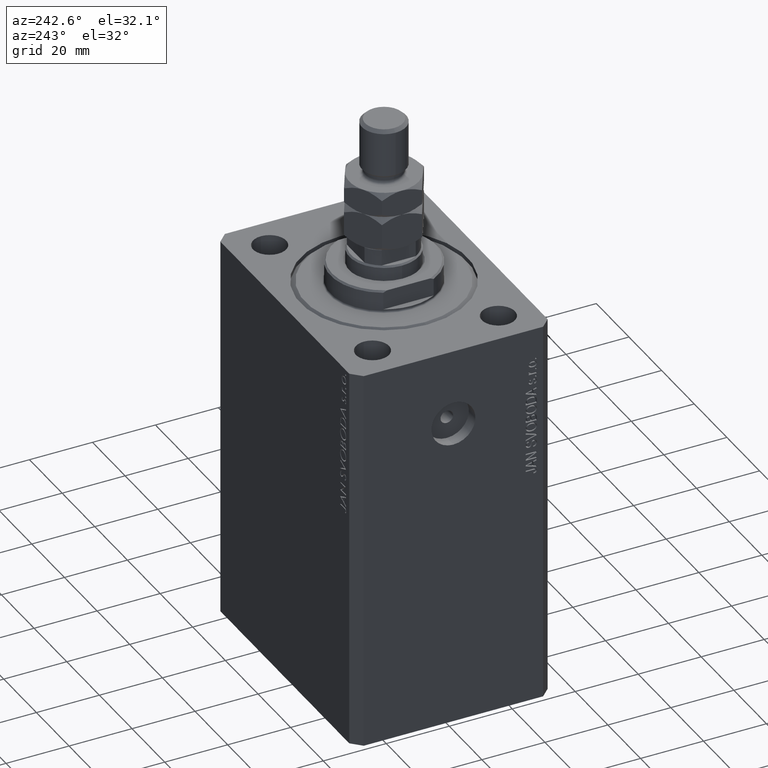
[diagram: clean part render]
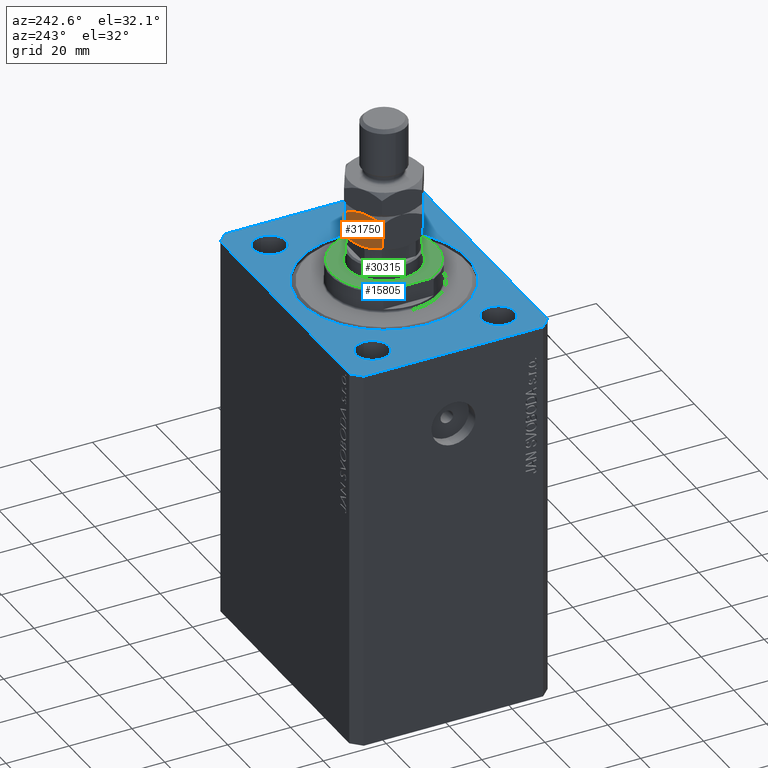
[diagram: same view with three faces highlighted in distinct colors, each labeled with its STEP entity id]
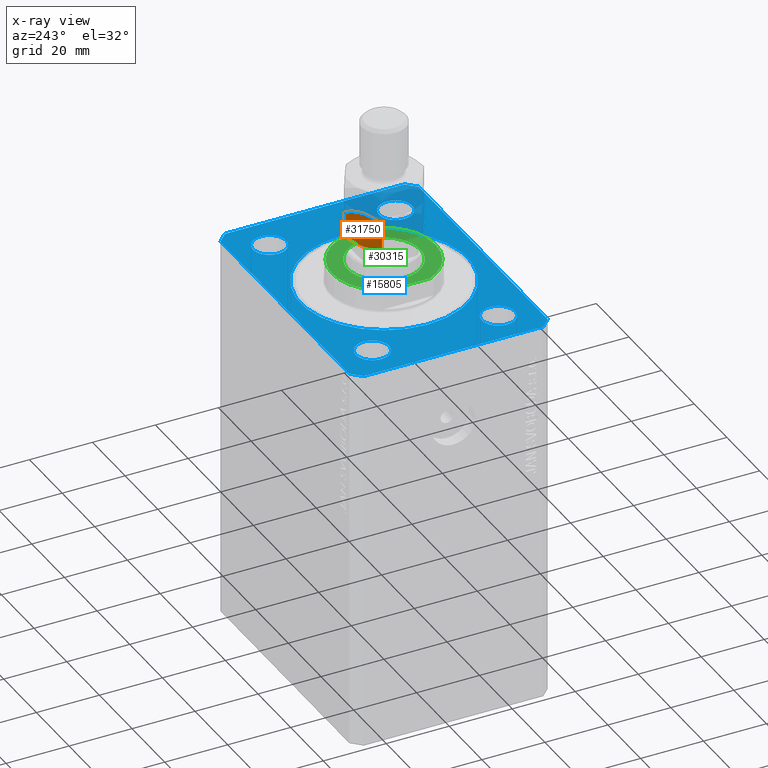
[diagram: x-ray of the same camera — body ghosted, the three highlighted faces saturated]
A machine part, auxiliary view with three faces highlighted in distinct colors.
The next image is the same camera in x-ray (body ghosted, the three faces saturated) — at least one of them is partly hidden behind the body in this view.
Their STEP definitions:

[orange] entity #31750 — the highlighted planar face has unit normal (0.5, -0.866, 0).
#35 = B_SPLINE_CURVE_WITH_KNOTS ( 'NONE', 3,
 ( #40409, #33423, #19397, #33647, #1659, #30131, #23133, #3673 ),
 .UNSPECIFIED., .F., .F.,
 ( 4, 2, 2, 4 ),
 ( 2.544311317609508508E-07, 0.003291871675740026034, 0.004937680298044156910, 0.006583488920348289086 ),
 .UNSPECIFIED. ) ;
#934 = CARTESIAN_POINT ( 'NONE',  ( -11.00000000000000000, 6.350852961085890591, 9.298294077828234805 ) ) ;
#1389 = CARTESIAN_POINT ( 'NONE',  ( 9.006588997586899406E-16, 12.70170592217176342, 1.701705922171758312 ) ) ;
#1659 = CARTESIAN_POINT ( 'NONE',  ( -3.579894028994817123, 10.63485314086127786, 10.79187792513292798 ) ) ;
#1712 = FACE_OUTER_BOUND ( 'NONE', #28970, .T. ) ;
#2554 = CARTESIAN_POINT ( 'NONE',  ( -7.397073880711845462, 8.431003325927239445, 10.83109139163524404 ) ) ;
#3673 = CARTESIAN_POINT ( 'NONE',  ( -5.499999999999990230, 9.526279441628824785, 11.00000000000000000 ) ) ;
#3925 = VERTEX_POINT ( 'NONE', #33505 ) ;
#6054 = CARTESIAN_POINT ( 'NONE',  ( -6.456670474420569406, 8.973945485696344093, 11.00000000000000000 ) ) ;
#6212 = LINE ( 'NONE', #42610, #34348 ) ;
#7448 = LINE ( 'NONE', #13763, #42145 ) ;
#7493 = EDGE_CURVE ( 'NONE', #8575, #3925, #6212, .T. ) ;
#7524 = CARTESIAN_POINT ( 'NONE',  ( -7.884967580346608607, 8.149317767107183030, 0.3282192120904074417 ) ) ;
#7699 = B_SPLINE_CURVE_WITH_KNOTS ( 'NONE', 3,
 ( #38041, #6054, #2554, #31053, #45285, #21208 ),
 .UNSPECIFIED., .F., .F.,
 ( 4, 2, 4 ),
 ( 0.006583488920348289086, 0.009852050593448704457, 0.01312061226654911983 ),
 .UNSPECIFIED. ) ;
#7920 = CARTESIAN_POINT ( 'NONE',  ( -4.543329525579419048, 10.07861339756131791, 1.768604793866978714E-15 ) ) ;
#8349 = EDGE_CURVE ( 'NONE', #25947, #3925, #33055, .T. ) ;
#8473 = B_SPLINE_CURVE_WITH_KNOTS ( 'NONE', 3,
 ( #43009, #39507, #32745, #7524, #40198, #15011, #21765, #22458 ),
 .UNSPECIFIED., .F., .F.,
 ( 4, 2, 2, 4 ),
 ( 2.544311317612473652E-07, 0.003291871675740032539, 0.004937680298044168185, 0.006583488920348303831 ),
 .UNSPECIFIED. ) ;
#8537 = AXIS2_PLACEMENT_3D ( 'NONE', #43282, #12213, #8734 ) ;
#8575 = VERTEX_POINT ( 'NONE', #19929 ) ;
#8734 = DIRECTION ( 'NONE',  ( 0.8660254037844389297, 0.4999999999999992784, 0.000000000000000000 ) ) ;
#11410 = CARTESIAN_POINT ( 'NONE',  ( -5.499999999999990230, 9.526279441628824785, 11.00000000000000000 ) ) ;
#12213 = DIRECTION ( 'NONE',  ( 0.4999999999999993339, -0.8660254037844390407, 0.000000000000000000 ) ) ;
#13763 = CARTESIAN_POINT ( 'NONE',  ( -11.00000000000000000, 6.350852961085890591, 11.00000000000000000 ) ) ;
#14384 = ORIENTED_EDGE ( 'NONE', *, *, #35974, .F. ) ;
#15011 = CARTESIAN_POINT ( 'NONE',  ( -6.470625887979888802, 8.965888323921223702, 0.04365929743512723255 ) ) ;
#15412 = CARTESIAN_POINT ( 'NONE',  ( -3.602926119288147433, 10.62155555733042434, 0.1689086083647601266 ) ) ;
#15520 = PLANE ( 'NONE',  #8537 ) ;
#15770 = VERTEX_POINT ( 'NONE', #934 ) ;
#15868 = ORIENTED_EDGE ( 'NONE', *, *, #7493, .T. ) ;
#16404 = EDGE_CURVE ( 'NONE', #24137, #25947, #8473, .T. ) ;
#18289 = CARTESIAN_POINT ( 'NONE',  ( -11.00000000000000000, 6.350852961085892368, 1.701705922171765195 ) ) ;
#19307 = CARTESIAN_POINT ( 'NONE',  ( -5.499999999999992895, 9.526279441628830114, 0.000000000000000000 ) ) ;
#19397 = CARTESIAN_POINT ( 'NONE',  ( -1.744478007639206130, 11.69453107486589083, 10.21937661245322637 ) ) ;
#19929 = CARTESIAN_POINT ( 'NONE',  ( -4.327962126576701651E-16, 12.70170592217176342, 9.298294077828241910 ) ) ;
#20502 = ORIENTED_EDGE ( 'NONE', *, *, #16404, .F. ) ;
#21208 = CARTESIAN_POINT ( 'NONE',  ( -11.00000000000000000, 6.350852961085890591, 9.298294077828234805 ) ) ;
#21765 = CARTESIAN_POINT ( 'NONE',  ( -5.981709287746635795, 9.248164454677164414, 1.734723475976807094E-15 ) ) ;
#22458 = CARTESIAN_POINT ( 'NONE',  ( -5.499999999999992895, 9.526279441628830114, 0.000000000000000000 ) ) ;
#23133 = CARTESIAN_POINT ( 'NONE',  ( -5.018290712253354435, 9.804394428580495813, 11.00000000000000178 ) ) ;
#24137 = VERTEX_POINT ( 'NONE', #18289 ) ;
#25947 = VERTEX_POINT ( 'NONE', #19307 ) ;
#27761 = ORIENTED_EDGE ( 'NONE', *, *, #8349, .F. ) ;
#28008 = DIRECTION ( 'NONE',  ( -0.000000000000000000, -0.000000000000000000, -1.000000000000000000 ) ) ;
#28970 = EDGE_LOOP ( 'NONE', ( #20502, #42463, #43246, #14384, #15868, #27761 ) ) ;
#29865 = CARTESIAN_POINT ( 'NONE',  ( -5.499999999999992895, 9.526279441628830114, 0.000000000000000000 ) ) ;
#30131 = CARTESIAN_POINT ( 'NONE',  ( -4.529374112020101428, 10.08667055933643830, 10.95634070256487469 ) ) ;
#30330 = EDGE_CURVE ( 'NONE', #41113, #15770, #7699, .T. ) ;
#31053 = CARTESIAN_POINT ( 'NONE',  ( -9.251785468064188223, 7.360185091700242488, 10.22231519547797340 ) ) ;
#31750 = ADVANCED_FACE ( 'NONE', ( #1712 ), #15520, .F. ) ;
#32745 = CARTESIAN_POINT ( 'NONE',  ( -9.255521992360788985, 7.358027808391769398, 0.7806233875467772920 ) ) ;
#33055 = B_SPLINE_CURVE_WITH_KNOTS ( 'NONE', 3,
 ( #29865, #7920, #15412, #33374, #40823, #1389 ),
 .UNSPECIFIED., .F., .F.,
 ( 4, 2, 4 ),
 ( 0.006583488920348303831, 0.009852050593448711396, 0.01312061226654911809 ),
 .UNSPECIFIED. ) ;
#33374 = CARTESIAN_POINT ( 'NONE',  ( -1.748214531935804672, 11.69237379155741330, 0.7776848045220272621 ) ) ;
#33423 = CARTESIAN_POINT ( 'NONE',  ( -0.8624791307172121613, 12.20375336388174681, 9.796246636118258522 ) ) ;
#33505 = CARTESIAN_POINT ( 'NONE',  ( 9.006588997586899406E-16, 12.70170592217176342, 1.701705922171758312 ) ) ;
#33647 = CARTESIAN_POINT ( 'NONE',  ( -3.115032419653383400, 10.90324111615047542, 10.67178078790959539 ) ) ;
#33898 = EDGE_CURVE ( 'NONE', #15770, #24137, #7448, .T. ) ;
#34348 = VECTOR ( 'NONE', #45439, 1000.000000000000000 ) ;
#35974 = EDGE_CURVE ( 'NONE', #8575, #41113, #35, .T. ) ;
#38041 = CARTESIAN_POINT ( 'NONE',  ( -5.499999999999990230, 9.526279441628824785, 11.00000000000000000 ) ) ;
#39507 = CARTESIAN_POINT ( 'NONE',  ( -10.13752086928278118, 6.848805519375908979, 1.203753363881748362 ) ) ;
#40198 = CARTESIAN_POINT ( 'NONE',  ( -7.420105971005176215, 8.417705742396382362, 0.2081220748670755127 ) ) ;
#40409 = CARTESIAN_POINT ( 'NONE',  ( -4.327962126576701651E-16, 12.70170592217176342, 9.298294077828241910 ) ) ;
#40823 = CARTESIAN_POINT ( 'NONE',  ( -0.8614806024966418230, 12.20432986441868728, 1.204329864418604235 ) ) ;
#41113 = VERTEX_POINT ( 'NONE', #11410 ) ;
#42145 = VECTOR ( 'NONE', #28008, 1000.000000000000000 ) ;
#42463 = ORIENTED_EDGE ( 'NONE', *, *, #33898, .F. ) ;
#42610 = CARTESIAN_POINT ( 'NONE',  ( 0.000000000000000000, 12.70170592217176342, 11.00000000000000000 ) ) ;
#43009 = CARTESIAN_POINT ( 'NONE',  ( -11.00000000000000000, 6.350852961085892368, 1.701705922171765195 ) ) ;
#43246 = ORIENTED_EDGE ( 'NONE', *, *, #30330, .F. ) ;
#43282 = CARTESIAN_POINT ( 'NONE',  ( 0.000000000000000000, 12.70170592217176342, 11.00000000000000000 ) ) ;
#45285 = CARTESIAN_POINT ( 'NONE',  ( -10.13851939750335696, 6.848229018838968507, 9.795670135581390880 ) ) ;
#45439 = DIRECTION ( 'NONE',  ( -0.000000000000000000, -0.000000000000000000, -1.000000000000000000 ) ) ;

[blue] entity #15805 — the highlighted planar face has unit normal (0, 0, 1).
#361 = AXIS2_PLACEMENT_3D ( 'NONE', #27453, #27680, #41900 ) ;
#516 = VERTEX_POINT ( 'NONE', #37106 ) ;
#536 = CIRCLE ( 'NONE', #6488, 5.250000000000000888 ) ;
#813 = EDGE_CURVE ( 'NONE', #15552, #8520, #536, .T. ) ;
#907 = ORIENTED_EDGE ( 'NONE', *, *, #26752, .F. ) ;
#954 = DIRECTION ( 'NONE',  ( -1.000000000000000000, 0.000000000000000000, 0.000000000000000000 ) ) ;
#1036 = CARTESIAN_POINT ( 'NONE',  ( -26.24999999999999289, -20.00000000000000355, 0.000000000000000000 ) ) ;
#1311 = CARTESIAN_POINT ( 'NONE',  ( 31.49999999999999289, -20.00000000000000355, 0.000000000000000000 ) ) ;
#1376 = DIRECTION ( 'NONE',  ( 1.000000000000000000, 0.000000000000000000, 0.000000000000000000 ) ) ;
#1455 = CARTESIAN_POINT ( 'NONE',  ( 42.50000000000000711, -28.50000000000000355, 0.000000000000000000 ) ) ;
#1774 = VECTOR ( 'NONE', #954, 1000.000000000000000 ) ;
#2152 = DIRECTION ( 'NONE',  ( 1.000000000000000000, 0.000000000000000000, 0.000000000000000000 ) ) ;
#3245 = CARTESIAN_POINT ( 'NONE',  ( 31.50000000000000000, 19.99999999999999289, 0.000000000000000000 ) ) ;
#3789 = CARTESIAN_POINT ( 'NONE',  ( -36.74999999999999289, -20.00000000000000355, 0.000000000000000000 ) ) ;
#3797 = CARTESIAN_POINT ( 'NONE',  ( -26.25000000000000000, 19.99999999999999645, 0.000000000000000000 ) ) ;
#3993 = AXIS2_PLACEMENT_3D ( 'NONE', #44418, #8939, #2152 ) ;
#4134 = CARTESIAN_POINT ( 'NONE',  ( 31.49999999999999289, -20.00000000000000355, 0.000000000000000000 ) ) ;
#4263 = DIRECTION ( 'NONE',  ( 1.000000000000000000, 0.000000000000000000, 0.000000000000000000 ) ) ;
#4651 = VERTEX_POINT ( 'NONE', #6041 ) ;
#4745 = ORIENTED_EDGE ( 'NONE', *, *, #6493, .T. ) ;
#5235 = ORIENTED_EDGE ( 'NONE', *, *, #27146, .F. ) ;
#5686 = ORIENTED_EDGE ( 'NONE', *, *, #40856, .T. ) ;
#6041 = CARTESIAN_POINT ( 'NONE',  ( 26.50000000000000355, 0.000000000000000000, 0.000000000000000000 ) ) ;
#6383 = AXIS2_PLACEMENT_3D ( 'NONE', #24470, #6716, #13036 ) ;
#6439 = CARTESIAN_POINT ( 'NONE',  ( 36.75000000000000000, 19.99999999999999289, 0.000000000000000000 ) ) ;
#6488 = AXIS2_PLACEMENT_3D ( 'NONE', #46164, #17697, #25386 ) ;
#6493 = EDGE_CURVE ( 'NONE', #23498, #25272, #10236, .T. ) ;
#6716 = DIRECTION ( 'NONE',  ( 0.000000000000000000, 0.000000000000000000, 1.000000000000000000 ) ) ;
#6836 = LINE ( 'NONE', #43475, #25380 ) ;
#6970 = VERTEX_POINT ( 'NONE', #37221 ) ;
#7017 = AXIS2_PLACEMENT_3D ( 'NONE', #4134, #11368, #15587 ) ;
#7077 = EDGE_CURVE ( 'NONE', #7477, #16525, #6836, .T. ) ;
#7477 = VERTEX_POINT ( 'NONE', #17424 ) ;
#7497 = EDGE_CURVE ( 'NONE', #20958, #6970, #45662, .T. ) ;
#7952 = CARTESIAN_POINT ( 'NONE',  ( -39.50000000000000711, 31.50000000000000000, 0.000000000000000000 ) ) ;
#8102 = ORIENTED_EDGE ( 'NONE', *, *, #15684, .T. ) ;
#8286 = DIRECTION ( 'NONE',  ( 1.000000000000000000, 0.000000000000000000, 0.000000000000000000 ) ) ;
#8520 = VERTEX_POINT ( 'NONE', #1036 ) ;
#8573 = AXIS2_PLACEMENT_3D ( 'NONE', #36697, #25496, #4263 ) ;
#8939 = DIRECTION ( 'NONE',  ( 0.000000000000000000, 0.000000000000000000, 1.000000000000000000 ) ) ;
#9033 = VERTEX_POINT ( 'NONE', #42949 ) ;
#9110 = LINE ( 'NONE', #25930, #1774 ) ;
#9234 = CIRCLE ( 'NONE', #3993, 5.250000000000000888 ) ;
#9240 = CARTESIAN_POINT ( 'NONE',  ( -42.50000000000000000, 28.50000000000000000, 0.000000000000000000 ) ) ;
#9448 = VERTEX_POINT ( 'NONE', #6439 ) ;
#9598 = CARTESIAN_POINT ( 'NONE',  ( -42.50000000000000000, -28.50000000000000000, 0.000000000000000000 ) ) ;
#9957 = DIRECTION ( 'NONE',  ( 1.000000000000000000, 0.000000000000000000, 0.000000000000000000 ) ) ;
#10236 = LINE ( 'NONE', #16784, #20150 ) ;
#10327 = EDGE_CURVE ( 'NONE', #4651, #9033, #20251, .T. ) ;
#10764 = DIRECTION ( 'NONE',  ( 8.886653596232072440E-15, 1.000000000000000000, 0.000000000000000000 ) ) ;
#10934 = ORIENTED_EDGE ( 'NONE', *, *, #16365, .F. ) ;
#11368 = DIRECTION ( 'NONE',  ( 0.000000000000000000, 0.000000000000000000, 1.000000000000000000 ) ) ;
#11916 = ORIENTED_EDGE ( 'NONE', *, *, #7077, .T. ) ;
#12355 = FACE_BOUND ( 'NONE', #24645, .T. ) ;
#12525 = ORIENTED_EDGE ( 'NONE', *, *, #40245, .F. ) ;
#12869 = EDGE_LOOP ( 'NONE', ( #35659, #4745, #5686, #8102, #25806, #11916, #35766, #15498 ) ) ;
#13036 = DIRECTION ( 'NONE',  ( 1.000000000000000000, 0.000000000000000000, 0.000000000000000000 ) ) ;
#13222 = FACE_OUTER_BOUND ( 'NONE', #12869, .T. ) ;
#13280 = VERTEX_POINT ( 'NONE', #45684 ) ;
#13435 = EDGE_CURVE ( 'NONE', #43616, #7477, #39833, .T. ) ;
#13582 = ORIENTED_EDGE ( 'NONE', *, *, #813, .F. ) ;
#14087 = DIRECTION ( 'NONE',  ( 0.7071067811865483499, 0.7071067811865466846, 0.000000000000000000 ) ) ;
#14679 = EDGE_CURVE ( 'NONE', #15326, #44925, #45808, .T. ) ;
#15326 = VERTEX_POINT ( 'NONE', #16903 ) ;
#15498 = ORIENTED_EDGE ( 'NONE', *, *, #7497, .T. ) ;
#15552 = VERTEX_POINT ( 'NONE', #3789 ) ;
#15587 = DIRECTION ( 'NONE',  ( 1.000000000000000000, 0.000000000000000000, 0.000000000000000000 ) ) ;
#15609 = VERTEX_POINT ( 'NONE', #19633 ) ;
#15684 = EDGE_CURVE ( 'NONE', #13280, #43616, #34343, .T. ) ;
#15730 = DIRECTION ( 'NONE',  ( 0.000000000000000000, -1.000000000000000000, 0.000000000000000000 ) ) ;
#15805 = ADVANCED_FACE ( 'NONE', ( #15870, #30096, #34458, #44339, #12355, #13222 ), #41675, .T. ) ;
#15870 = FACE_BOUND ( 'NONE', #37380, .T. ) ;
#16233 = VECTOR ( 'NONE', #10764, 1000.000000000000000 ) ;
#16365 = EDGE_CURVE ( 'NONE', #8520, #15552, #33169, .T. ) ;
#16370 = VERTEX_POINT ( 'NONE', #3797 ) ;
#16525 = VERTEX_POINT ( 'NONE', #1455 ) ;
#16784 = CARTESIAN_POINT ( 'NONE',  ( -39.50000000000000711, 31.50000000000000000, 0.000000000000000000 ) ) ;
#16903 = CARTESIAN_POINT ( 'NONE',  ( 26.24999999999999645, -20.00000000000000355, 0.000000000000000000 ) ) ;
#17424 = CARTESIAN_POINT ( 'NONE',  ( 39.50000000000000711, -31.50000000000000000, 0.000000000000000000 ) ) ;
#17430 = DIRECTION ( 'NONE',  ( 0.000000000000000000, 0.000000000000000000, 1.000000000000000000 ) ) ;
#17550 = CIRCLE ( 'NONE', #6383, 5.250000000000000888 ) ;
#17697 = DIRECTION ( 'NONE',  ( 0.000000000000000000, 0.000000000000000000, 1.000000000000000000 ) ) ;
#18875 = ORIENTED_EDGE ( 'NONE', *, *, #45544, .F. ) ;
#19273 = DIRECTION ( 'NONE',  ( 1.000000000000000000, 0.000000000000000000, 0.000000000000000000 ) ) ;
#19415 = VECTOR ( 'NONE', #20920, 1000.000000000000114 ) ;
#19633 = CARTESIAN_POINT ( 'NONE',  ( 26.25000000000000355, 19.99999999999999289, 0.000000000000000000 ) ) ;
#20150 = VECTOR ( 'NONE', #45940, 1000.000000000000000 ) ;
#20251 = CIRCLE ( 'NONE', #39643, 26.50000000000000355 ) ;
#20493 = VECTOR ( 'NONE', #27562, 1000.000000000000000 ) ;
#20920 = DIRECTION ( 'NONE',  ( -0.7071067811865356934, 0.7071067811865594521, 0.000000000000000000 ) ) ;
#20958 = VERTEX_POINT ( 'NONE', #45950 ) ;
#23498 = VERTEX_POINT ( 'NONE', #7952 ) ;
#23644 = EDGE_CURVE ( 'NONE', #15609, #9448, #28057, .T. ) ;
#24470 = CARTESIAN_POINT ( 'NONE',  ( -31.50000000000000000, 19.99999999999999645, 0.000000000000000000 ) ) ;
#24645 = EDGE_LOOP ( 'NONE', ( #34391, #18875 ) ) ;
#24871 = CARTESIAN_POINT ( 'NONE',  ( 42.50000000000051870, 28.49999999999995381, 0.000000000000000000 ) ) ;
#24946 = CIRCLE ( 'NONE', #45806, 5.249999999999997335 ) ;
#25272 = VERTEX_POINT ( 'NONE', #9240 ) ;
#25380 = VECTOR ( 'NONE', #14087, 1000.000000000000000 ) ;
#25386 = DIRECTION ( 'NONE',  ( 1.000000000000000000, 0.000000000000000000, 0.000000000000000000 ) ) ;
#25496 = DIRECTION ( 'NONE',  ( 0.000000000000000000, 0.000000000000000000, 1.000000000000000000 ) ) ;
#25806 = ORIENTED_EDGE ( 'NONE', *, *, #13435, .T. ) ;
#25930 = CARTESIAN_POINT ( 'NONE',  ( 39.50000000000056843, 31.50000000000000000, 0.000000000000000000 ) ) ;
#26752 = EDGE_CURVE ( 'NONE', #9033, #4651, #28838, .T. ) ;
#27146 = EDGE_CURVE ( 'NONE', #44925, #15326, #40024, .T. ) ;
#27288 = AXIS2_PLACEMENT_3D ( 'NONE', #3245, #31728, #45964 ) ;
#27453 = CARTESIAN_POINT ( 'NONE',  ( 0.000000000000000000, 0.000000000000000000, 0.000000000000000000 ) ) ;
#27562 = DIRECTION ( 'NONE',  ( 0.7071067811865471286, -0.7071067811865479058, 0.000000000000000000 ) ) ;
#27680 = DIRECTION ( 'NONE',  ( 0.000000000000000000, 0.000000000000000000, 1.000000000000000000 ) ) ;
#27991 = VECTOR ( 'NONE', #15730, 1000.000000000000000 ) ;
#28057 = CIRCLE ( 'NONE', #27288, 5.249999999999997335 ) ;
#28317 = ORIENTED_EDGE ( 'NONE', *, *, #23644, .F. ) ;
#28513 = LINE ( 'NONE', #42733, #16233 ) ;
#28576 = EDGE_CURVE ( 'NONE', #16525, #20958, #28513, .T. ) ;
#28838 = CIRCLE ( 'NONE', #45265, 26.50000000000000355 ) ;
#29156 = CARTESIAN_POINT ( 'NONE',  ( 31.50000000000000000, 19.99999999999999289, 0.000000000000000000 ) ) ;
#29784 = DIRECTION ( 'NONE',  ( 0.000000000000000000, 0.000000000000000000, 1.000000000000000000 ) ) ;
#29807 = CARTESIAN_POINT ( 'NONE',  ( 36.74999999999999289, -20.00000000000000355, 0.000000000000000000 ) ) ;
#29951 = EDGE_CURVE ( 'NONE', #16370, #516, #9234, .T. ) ;
#30096 = FACE_BOUND ( 'NONE', #31814, .T. ) ;
#30206 = EDGE_CURVE ( 'NONE', #6970, #23498, #9110, .T. ) ;
#30283 = ORIENTED_EDGE ( 'NONE', *, *, #10327, .F. ) ;
#31728 = DIRECTION ( 'NONE',  ( 0.000000000000000000, 0.000000000000000000, 1.000000000000000000 ) ) ;
#31784 = ORIENTED_EDGE ( 'NONE', *, *, #14679, .F. ) ;
#31814 = EDGE_LOOP ( 'NONE', ( #10934, #13582 ) ) ;
#32363 = VECTOR ( 'NONE', #36350, 1000.000000000000000 ) ;
#33169 = CIRCLE ( 'NONE', #8573, 5.250000000000000888 ) ;
#33281 = CARTESIAN_POINT ( 'NONE',  ( 0.000000000000000000, 0.000000000000000000, 0.000000000000000000 ) ) ;
#33359 = DIRECTION ( 'NONE',  ( 0.000000000000000000, 0.000000000000000000, 1.000000000000000000 ) ) ;
#34343 = LINE ( 'NONE', #9598, #20493 ) ;
#34391 = ORIENTED_EDGE ( 'NONE', *, *, #29951, .F. ) ;
#34458 = FACE_BOUND ( 'NONE', #45310, .T. ) ;
#35659 = ORIENTED_EDGE ( 'NONE', *, *, #30206, .T. ) ;
#35766 = ORIENTED_EDGE ( 'NONE', *, *, #28576, .T. ) ;
#36350 = DIRECTION ( 'NONE',  ( 1.000000000000000000, 0.000000000000000000, 0.000000000000000000 ) ) ;
#36568 = CARTESIAN_POINT ( 'NONE',  ( -39.50000000000000711, -31.50000000000000000, 0.000000000000000000 ) ) ;
#36697 = CARTESIAN_POINT ( 'NONE',  ( -31.49999999999999289, -20.00000000000000355, 0.000000000000000000 ) ) ;
#37096 = AXIS2_PLACEMENT_3D ( 'NONE', #1311, #29784, #19273 ) ;
#37106 = CARTESIAN_POINT ( 'NONE',  ( -36.75000000000000000, 19.99999999999999645, 0.000000000000000000 ) ) ;
#37221 = CARTESIAN_POINT ( 'NONE',  ( 39.50000000000056843, 31.50000000000000000, 0.000000000000000000 ) ) ;
#37380 = EDGE_LOOP ( 'NONE', ( #30283, #907 ) ) ;
#37487 = EDGE_LOOP ( 'NONE', ( #12525, #28317 ) ) ;
#37630 = CARTESIAN_POINT ( 'NONE',  ( -39.50000000000000711, -31.50000000000000000, 0.000000000000000000 ) ) ;
#37636 = LINE ( 'NONE', #41131, #27991 ) ;
#39643 = AXIS2_PLACEMENT_3D ( 'NONE', #33281, #40492, #8286 ) ;
#39833 = LINE ( 'NONE', #36568, #32363 ) ;
#40024 = CIRCLE ( 'NONE', #37096, 5.249999999999997335 ) ;
#40245 = EDGE_CURVE ( 'NONE', #9448, #15609, #24946, .T. ) ;
#40492 = DIRECTION ( 'NONE',  ( 0.000000000000000000, 0.000000000000000000, 1.000000000000000000 ) ) ;
#40856 = EDGE_CURVE ( 'NONE', #25272, #13280, #37636, .T. ) ;
#41131 = CARTESIAN_POINT ( 'NONE',  ( -42.50000000000000000, 28.50000000000000000, 0.000000000000000000 ) ) ;
#41468 = CARTESIAN_POINT ( 'NONE',  ( 0.000000000000000000, 0.000000000000000000, 0.000000000000000000 ) ) ;
#41675 = PLANE ( 'NONE',  #361 ) ;
#41900 = DIRECTION ( 'NONE',  ( 1.000000000000000000, 0.000000000000000000, -0.000000000000000000 ) ) ;
#42733 = CARTESIAN_POINT ( 'NONE',  ( 42.50000000000000711, -28.50000000000000355, 0.000000000000000000 ) ) ;
#42949 = CARTESIAN_POINT ( 'NONE',  ( -26.50000000000000355, 3.245314017740486554E-15, 0.000000000000000000 ) ) ;
#43475 = CARTESIAN_POINT ( 'NONE',  ( 39.50000000000000711, -31.50000000000000000, 0.000000000000000000 ) ) ;
#43616 = VERTEX_POINT ( 'NONE', #37630 ) ;
#44339 = FACE_BOUND ( 'NONE', #37487, .T. ) ;
#44418 = CARTESIAN_POINT ( 'NONE',  ( -31.50000000000000000, 19.99999999999999645, 0.000000000000000000 ) ) ;
#44925 = VERTEX_POINT ( 'NONE', #29807 ) ;
#45265 = AXIS2_PLACEMENT_3D ( 'NONE', #41468, #17430, #9957 ) ;
#45310 = EDGE_LOOP ( 'NONE', ( #5235, #31784 ) ) ;
#45544 = EDGE_CURVE ( 'NONE', #516, #16370, #17550, .T. ) ;
#45662 = LINE ( 'NONE', #24871, #19415 ) ;
#45684 = CARTESIAN_POINT ( 'NONE',  ( -42.50000000000000000, -28.50000000000000000, 0.000000000000000000 ) ) ;
#45806 = AXIS2_PLACEMENT_3D ( 'NONE', #29156, #33359, #1376 ) ;
#45808 = CIRCLE ( 'NONE', #7017, 5.249999999999997335 ) ;
#45940 = DIRECTION ( 'NONE',  ( -0.7071067811865471286, -0.7071067811865479058, 0.000000000000000000 ) ) ;
#45950 = CARTESIAN_POINT ( 'NONE',  ( 42.50000000000051870, 28.49999999999995381, 0.000000000000000000 ) ) ;
#45964 = DIRECTION ( 'NONE',  ( 1.000000000000000000, 0.000000000000000000, 0.000000000000000000 ) ) ;
#46164 = CARTESIAN_POINT ( 'NONE',  ( -31.49999999999999289, -20.00000000000000355, 0.000000000000000000 ) ) ;

[green] entity #30315 — the highlighted planar face has unit normal (0, 0, 1).
#122 = EDGE_CURVE ( 'NONE', #4160, #29157, #22215, .T. ) ;
#1247 = AXIS2_PLACEMENT_3D ( 'NONE', #45373, #8972, #23431 ) ;
#1648 = EDGE_CURVE ( 'NONE', #29157, #9677, #41730, .T. ) ;
#2210 = CARTESIAN_POINT ( 'NONE',  ( -11.50000000000001776, 0.000000000000000000, -7.000000000000000000 ) ) ;
#4160 = VERTEX_POINT ( 'NONE', #22465 ) ;
#4390 = ORIENTED_EDGE ( 'NONE', *, *, #122, .T. ) ;
#7621 = DIRECTION ( 'NONE',  ( -0.000000000000000000, -1.000000000000000000, -0.000000000000000000 ) ) ;
#7880 = DIRECTION ( 'NONE',  ( 0.000000000000000000, 0.000000000000000000, -1.000000000000000000 ) ) ;
#8174 = ORIENTED_EDGE ( 'NONE', *, *, #34250, .F. ) ;
#8972 = DIRECTION ( 'NONE',  ( -0.000000000000000000, -0.000000000000000000, 1.000000000000000000 ) ) ;
#9339 = DIRECTION ( 'NONE',  ( -1.000000000000000000, 0.000000000000000000, 0.000000000000000000 ) ) ;
#9574 = CARTESIAN_POINT ( 'NONE',  ( 0.000000000000000000, 0.000000000000000000, -7.000000000000000000 ) ) ;
#9608 = CARTESIAN_POINT ( 'NONE',  ( -14.99999999999999645, -6.873863542433817031, -7.000000000000000000 ) ) ;
#9677 = VERTEX_POINT ( 'NONE', #9608 ) ;
#10032 = CARTESIAN_POINT ( 'NONE',  ( 0.000000000000000000, 0.000000000000000000, -7.000000000000000000 ) ) ;
#10795 = VERTEX_POINT ( 'NONE', #2210 ) ;
#14626 = DIRECTION ( 'NONE',  ( 0.000000000000000000, 0.000000000000000000, -1.000000000000000000 ) ) ;
#15597 = ORIENTED_EDGE ( 'NONE', *, *, #26840, .T. ) ;
#19942 = ORIENTED_EDGE ( 'NONE', *, *, #31122, .T. ) ;
#20435 = AXIS2_PLACEMENT_3D ( 'NONE', #10032, #38048, #9339 ) ;
#21041 = VERTEX_POINT ( 'NONE', #32656 ) ;
#22103 = LINE ( 'NONE', #32379, #34743 ) ;
#22215 = LINE ( 'NONE', #36458, #36298 ) ;
#22465 = CARTESIAN_POINT ( 'NONE',  ( 14.99999999999999645, 6.873863542433817031, -7.000000000000000000 ) ) ;
#23431 = DIRECTION ( 'NONE',  ( -1.000000000000000000, 0.000000000000000000, 0.000000000000000000 ) ) ;
#23598 = CIRCLE ( 'NONE', #1247, 11.50000000000001776 ) ;
#23805 = DIRECTION ( 'NONE',  ( -1.000000000000000000, 0.000000000000000000, -0.000000000000000000 ) ) ;
#24022 = EDGE_LOOP ( 'NONE', ( #39628, #19942 ) ) ;
#25042 = VERTEX_POINT ( 'NONE', #44784 ) ;
#25123 = DIRECTION ( 'NONE',  ( -1.000000000000000000, 0.000000000000000000, 0.000000000000000000 ) ) ;
#25126 = AXIS2_PLACEMENT_3D ( 'NONE', #32825, #14626, #25123 ) ;
#26269 = EDGE_CURVE ( 'NONE', #10795, #25042, #23598, .T. ) ;
#26395 = CIRCLE ( 'NONE', #20435, 11.50000000000001776 ) ;
#26840 = EDGE_CURVE ( 'NONE', #21041, #4160, #29613, .T. ) ;
#27304 = FACE_OUTER_BOUND ( 'NONE', #36340, .T. ) ;
#28350 = AXIS2_PLACEMENT_3D ( 'NONE', #36132, #7880, #40100 ) ;
#29157 = VERTEX_POINT ( 'NONE', #35591 ) ;
#29613 = CIRCLE ( 'NONE', #25126, 16.50000000000002132 ) ;
#30315 = ADVANCED_FACE ( 'NONE', ( #45039, #27304 ), #41533, .T. ) ;
#31122 = EDGE_CURVE ( 'NONE', #25042, #10795, #26395, .T. ) ;
#32379 = CARTESIAN_POINT ( 'NONE',  ( -15.00000000000000000, -42.42640687119285303, -7.000000000000000000 ) ) ;
#32656 = CARTESIAN_POINT ( 'NONE',  ( -14.99999999999999645, 6.873863542433817031, -7.000000000000000000 ) ) ;
#32825 = CARTESIAN_POINT ( 'NONE',  ( 0.000000000000000000, 0.000000000000000000, -7.000000000000000000 ) ) ;
#33114 = AXIS2_PLACEMENT_3D ( 'NONE', #9574, #34542, #23805 ) ;
#33198 = DIRECTION ( 'NONE',  ( 0.000000000000000000, -1.000000000000000000, -0.000000000000000000 ) ) ;
#34250 = EDGE_CURVE ( 'NONE', #21041, #9677, #22103, .T. ) ;
#34542 = DIRECTION ( 'NONE',  ( 0.000000000000000000, 0.000000000000000000, -1.000000000000000000 ) ) ;
#34743 = VECTOR ( 'NONE', #7621, 1000.000000000000000 ) ;
#35591 = CARTESIAN_POINT ( 'NONE',  ( 14.99999999999999645, -6.873863542433817031, -7.000000000000000000 ) ) ;
#36132 = CARTESIAN_POINT ( 'NONE',  ( 0.000000000000000000, 0.000000000000000000, -7.000000000000000000 ) ) ;
#36298 = VECTOR ( 'NONE', #33198, 1000.000000000000000 ) ;
#36340 = EDGE_LOOP ( 'NONE', ( #15597, #4390, #37901, #8174 ) ) ;
#36458 = CARTESIAN_POINT ( 'NONE',  ( 15.00000000000000000, -42.42640687119285303, -7.000000000000000000 ) ) ;
#37901 = ORIENTED_EDGE ( 'NONE', *, *, #1648, .T. ) ;
#38048 = DIRECTION ( 'NONE',  ( -0.000000000000000000, -0.000000000000000000, 1.000000000000000000 ) ) ;
#39628 = ORIENTED_EDGE ( 'NONE', *, *, #26269, .T. ) ;
#40100 = DIRECTION ( 'NONE',  ( -1.000000000000000000, 0.000000000000000000, 0.000000000000000000 ) ) ;
#41533 = PLANE ( 'NONE',  #33114 ) ;
#41730 = CIRCLE ( 'NONE', #28350, 16.50000000000002132 ) ;
#44784 = CARTESIAN_POINT ( 'NONE',  ( 11.50000000000001776, 1.408343819019458543E-15, -7.000000000000000000 ) ) ;
#45039 = FACE_BOUND ( 'NONE', #24022, .T. ) ;
#45373 = CARTESIAN_POINT ( 'NONE',  ( 0.000000000000000000, 0.000000000000000000, -7.000000000000000000 ) ) ;